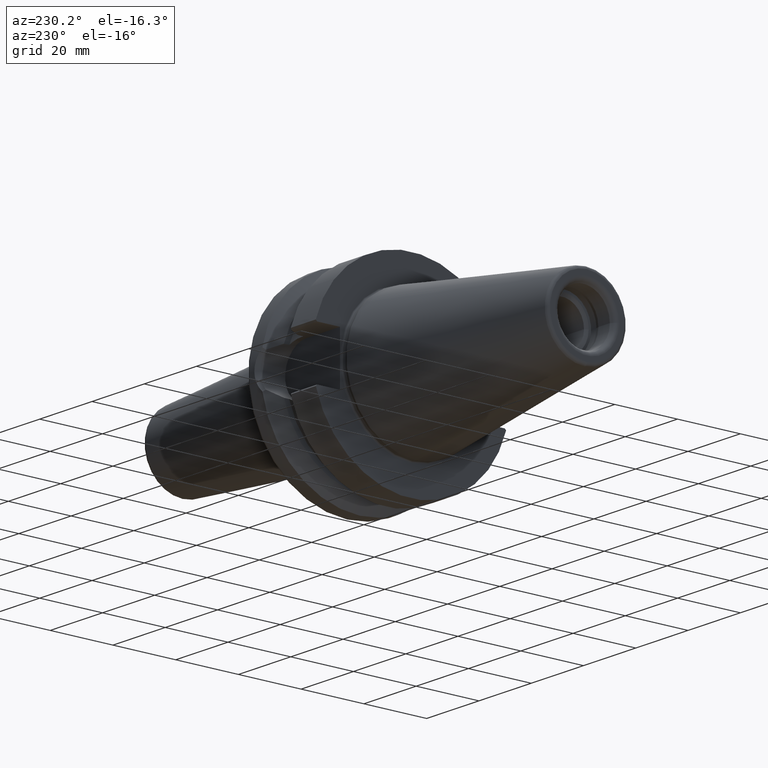
[diagram: clean part render]
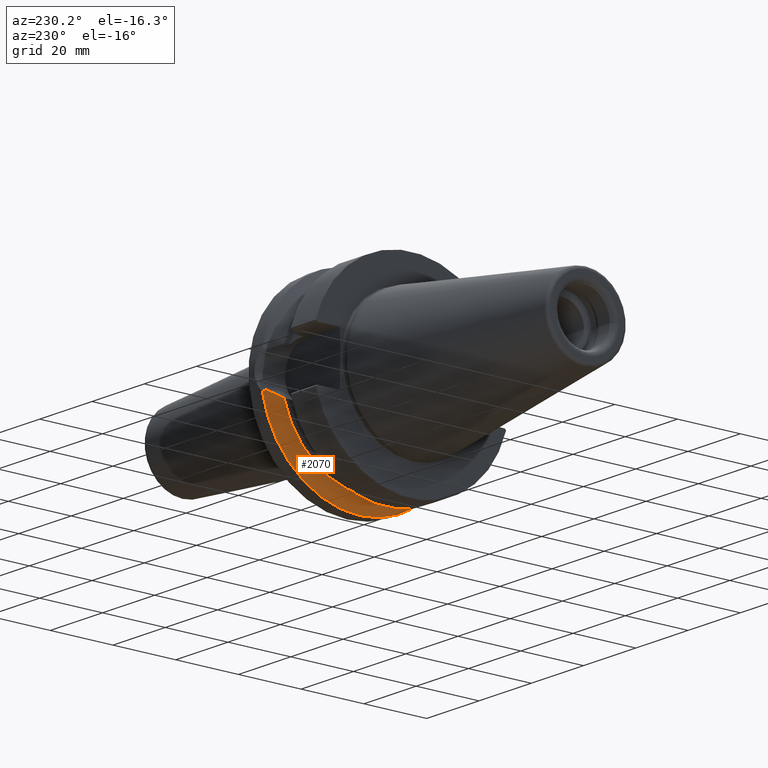
[diagram: same view with one face highlighted and labeled with its STEP entity id]
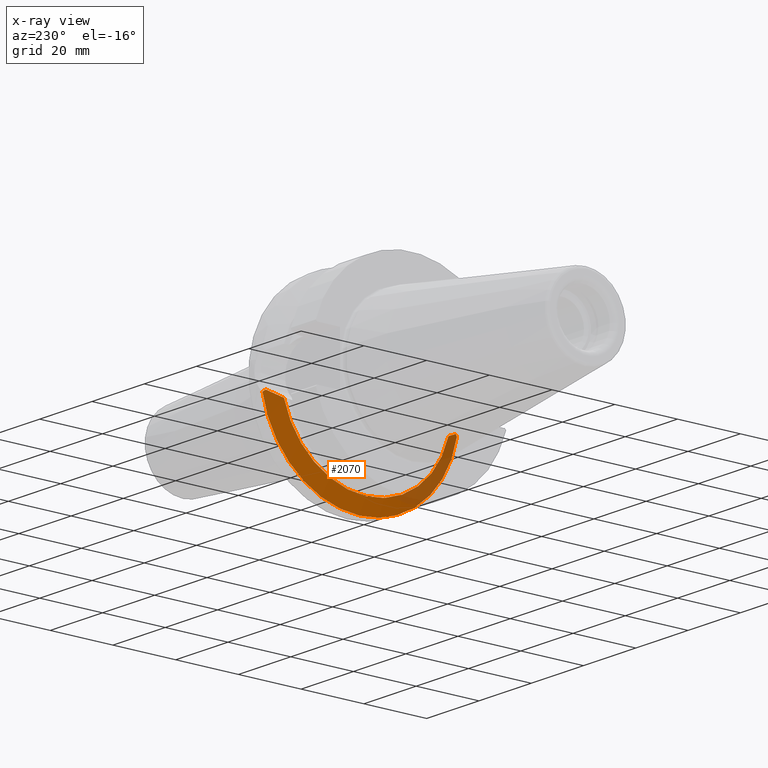
[diagram: x-ray of the same camera — body ghosted, the highlighted face saturated]
A machine part, auxiliary view. The second image highlights one B-rep face of the part: STEP entity #2070.
The next image is the same camera in x-ray: the body ghosted, the highlighted face saturated — about 21% of this face is hidden behind the body in this view.
In plain terms, the highlighted conical surface has half-angle 60 deg.
Its self-contained STEP definition (entity closure, byte-faithful):
#538=CARTESIAN_POINT('',(2.117998131741E1,-3.029289531603E1,-5.098022438631E0));
#539=CARTESIAN_POINT('',(2.125098636771E1,-3.040276279849E1,-5.186240369507E0));
#540=CARTESIAN_POINT('',(2.139712436014E1,-3.062857704635E1,-5.366851324556E0));
#541=CARTESIAN_POINT('',(2.155161117429E1,-3.086661835544E1,-5.555829756867E0));
#542=CARTESIAN_POINT('',(2.16309635E1,-3.098871085802E1,-5.652415356123E0));
#544=CARTESIAN_POINT('',(2.16309635E1,0.E0,0.E0));
#545=DIRECTION('',(1.E0,0.E0,0.E0));
#546=DIRECTION('',(0.E0,-9.837685986673E-1,-1.794417573372E-1));
#547=AXIS2_PLACEMENT_3D('',#544,#545,#546);
#549=CARTESIAN_POINT('',(2.16309635E1,0.E0,0.E0));
#550=DIRECTION('',(1.E0,0.E0,0.E0));
#551=DIRECTION('',(0.E0,0.E0,-1.E0));
#552=AXIS2_PLACEMENT_3D('',#549,#550,#551);
#554=CARTESIAN_POINT('',(2.117998131741E1,3.029289531603E1,-5.098022438631E0));
#555=CARTESIAN_POINT('',(2.125348414074E1,3.040662765083E1,-5.189343646915E0));
#556=CARTESIAN_POINT('',(2.140215551002E1,3.063633978232E1,-5.373035076681E0));
#557=CARTESIAN_POINT('',(2.155414334301E1,3.087051438261E1,-5.558911847172E0));
#558=CARTESIAN_POINT('',(2.16309635E1,3.098871085802E1,-5.652415356123E0));
#577=CARTESIAN_POINT('',(2.117998131741E1,-3.029289531603E1,-5.098022438631E0));
#578=CARTESIAN_POINT('',(2.099357945593E1,-2.992716271349E1,-5.325812749184E0));
#579=CARTESIAN_POINT('',(2.059086834754E1,-2.913753076905E1,-5.766648249127E0));
#580=CARTESIAN_POINT('',(1.990303269829E1,-2.779127514901E1,-6.368641630073E0));
#581=CARTESIAN_POINT('',(1.937816045766E1,-2.676643204292E1,-6.730473604449E0));
#582=CARTESIAN_POINT('',(1.91E1,-2.622423715090E1,-6.897825744392E0));
#651=CARTESIAN_POINT('',(1.91E1,0.E0,0.E0));
#652=DIRECTION('',(1.E0,0.E0,0.E0));
#653=DIRECTION('',(0.E0,-9.671043850984E-1,-2.543798504666E-1));
#654=AXIS2_PLACEMENT_3D('',#651,#652,#653);
#697=CARTESIAN_POINT('',(1.91E1,2.622423715090E1,-6.897825744392E0));
#698=CARTESIAN_POINT('',(1.931270939664E1,2.663885376935E1,-6.769851506023E0));
#699=CARTESIAN_POINT('',(1.971780615998E1,2.742950321941E1,-6.499305607373E0));
#700=CARTESIAN_POINT('',(2.026354286535E1,2.849673598439E1,-6.060161450422E0));
#701=CARTESIAN_POINT('',(2.075152484592E1,2.945251334633E1,-5.593981638638E0));
#702=CARTESIAN_POINT('',(2.104302502496E1,3.002417814296E1,-5.265388344428E0));
#703=CARTESIAN_POINT('',(2.117998131741E1,3.029289531603E1,-5.098022438631E0));
#741=CARTESIAN_POINT('',(2.16309635E1,3.098871085802E1,-5.652415356123E0));
#1039=CARTESIAN_POINT('',(1.91E1,2.622423715090E1,-6.897825744392E0));
#1041=VERTEX_POINT('',#1039);
#1062=CARTESIAN_POINT('',(2.16309635E1,0.E0,-3.15E1));
#1063=VERTEX_POINT('',#1062);
#1131=VERTEX_POINT('',#741);
#1136=VERTEX_POINT('',#554);
#1176=VERTEX_POINT('',#538);
#1177=VERTEX_POINT('',#542);
#1178=VERTEX_POINT('',#582);
#2050=CARTESIAN_POINT('',(2.036548175E1,0.E0,0.E0));
#2051=DIRECTION('',(1.E0,0.E0,0.E0));
#2052=DIRECTION('',(0.E0,0.E0,1.E0));
#2053=AXIS2_PLACEMENT_3D('',#2050,#2051,#2052);
#2054=CONICAL_SURFACE('',#2053,2.930812131295E1,6.E1);
#2056=ORIENTED_EDGE('',*,*,#2055,.F.);
#2058=ORIENTED_EDGE('',*,*,#2057,.F.);
#2060=ORIENTED_EDGE('',*,*,#2059,.T.);
#2061=ORIENTED_EDGE('',*,*,#2015,.T.);
#2063=ORIENTED_EDGE('',*,*,#2062,.T.);
#2065=ORIENTED_EDGE('',*,*,#2064,.F.);
#2067=ORIENTED_EDGE('',*,*,#2066,.F.);
#2068=EDGE_LOOP('',(#2056,#2058,#2060,#2061,#2063,#2065,#2067));
#2069=FACE_OUTER_BOUND('',#2068,.F.);
#2070=ADVANCED_FACE('',(#2069),#2054,.T.);
#543=B_SPLINE_CURVE_WITH_KNOTS('',3,(#538,#539,#540,#541,#542),.UNSPECIFIED.,
.F.,.F.,(4,1,4),(0.E0,5.E-1,1.E0),.UNSPECIFIED.);
#548=CIRCLE('',#547,3.15E1);
#553=CIRCLE('',#552,3.15E1);
#559=B_SPLINE_CURVE_WITH_KNOTS('',3,(#554,#555,#556,#557,#558),.UNSPECIFIED.,
.F.,.F.,(4,1,4),(0.E0,5.E-1,1.E0),.UNSPECIFIED.);
#583=B_SPLINE_CURVE_WITH_KNOTS('',3,(#577,#578,#579,#580,#581,#582),
.UNSPECIFIED.,.F.,.F.,(4,1,1,4),(0.E0,3.333333333333E-1,6.666666666667E-1,1.E0),
.UNSPECIFIED.);
#655=CIRCLE('',#654,2.711624262590E1);
#704=B_SPLINE_CURVE_WITH_KNOTS('',3,(#697,#698,#699,#700,#701,#702,#703),
.UNSPECIFIED.,.F.,.F.,(4,1,1,1,4),(0.E0,2.5E-1,5.E-1,7.5E-1,1.E0),
.UNSPECIFIED.);
#2015=EDGE_CURVE('',#1177,#1063,#548,.T.);
#2055=EDGE_CURVE('',#1178,#1041,#655,.T.);
#2057=EDGE_CURVE('',#1176,#1178,#583,.T.);
#2059=EDGE_CURVE('',#1176,#1177,#543,.T.);
#2062=EDGE_CURVE('',#1063,#1131,#553,.T.);
#2064=EDGE_CURVE('',#1136,#1131,#559,.T.);
#2066=EDGE_CURVE('',#1041,#1136,#704,.T.);